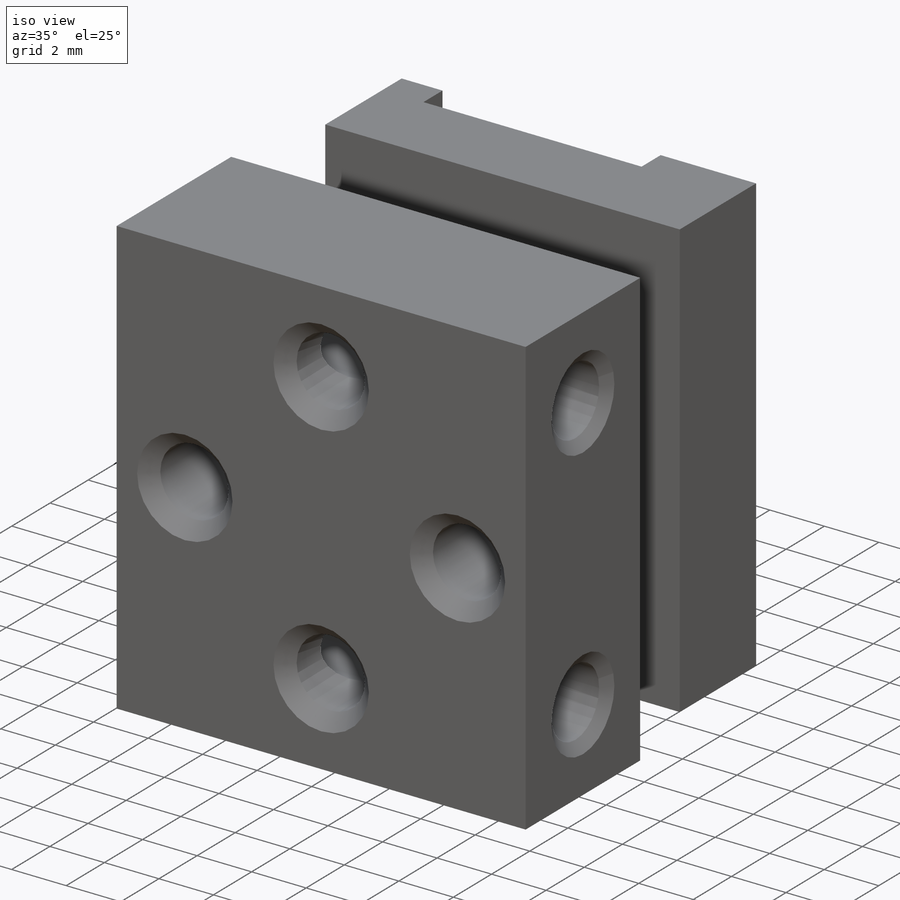
[diagram: iso view]
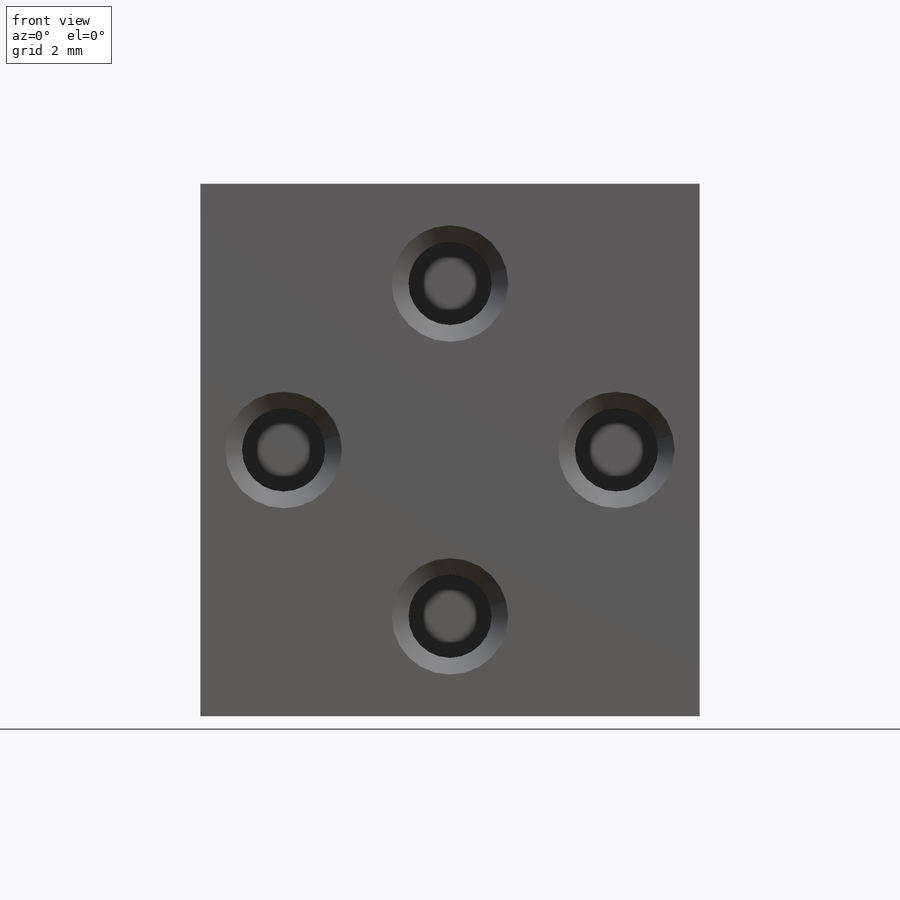
[diagram: front view]
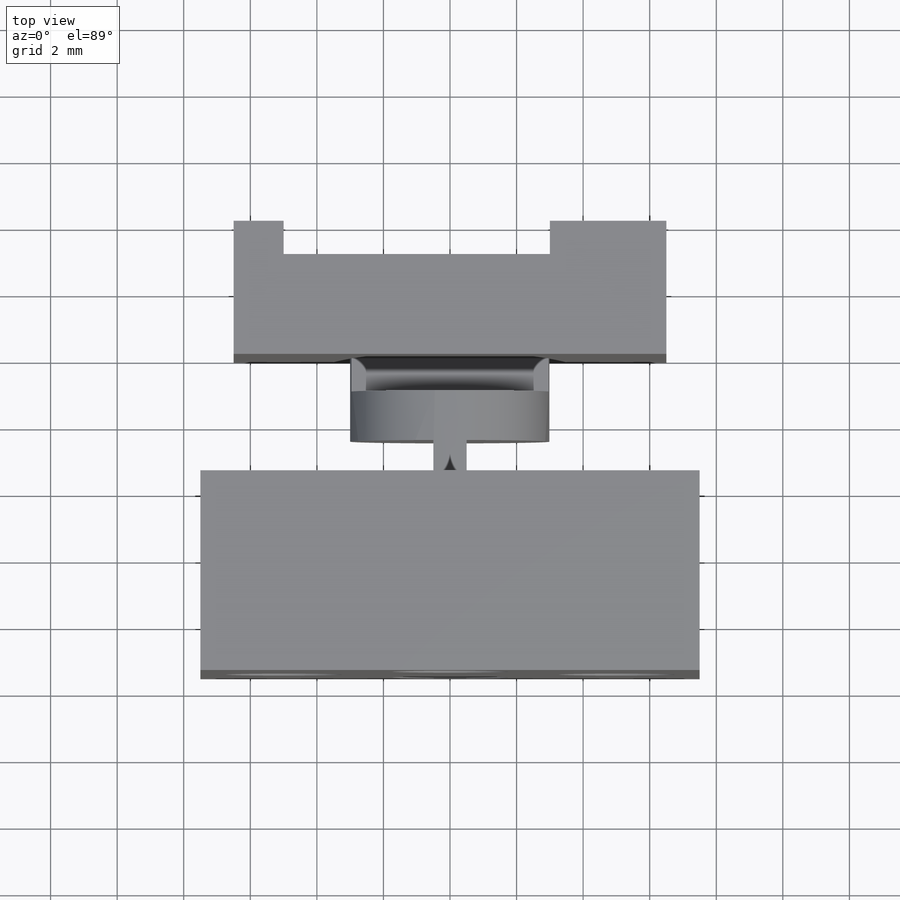
[diagram: top view]
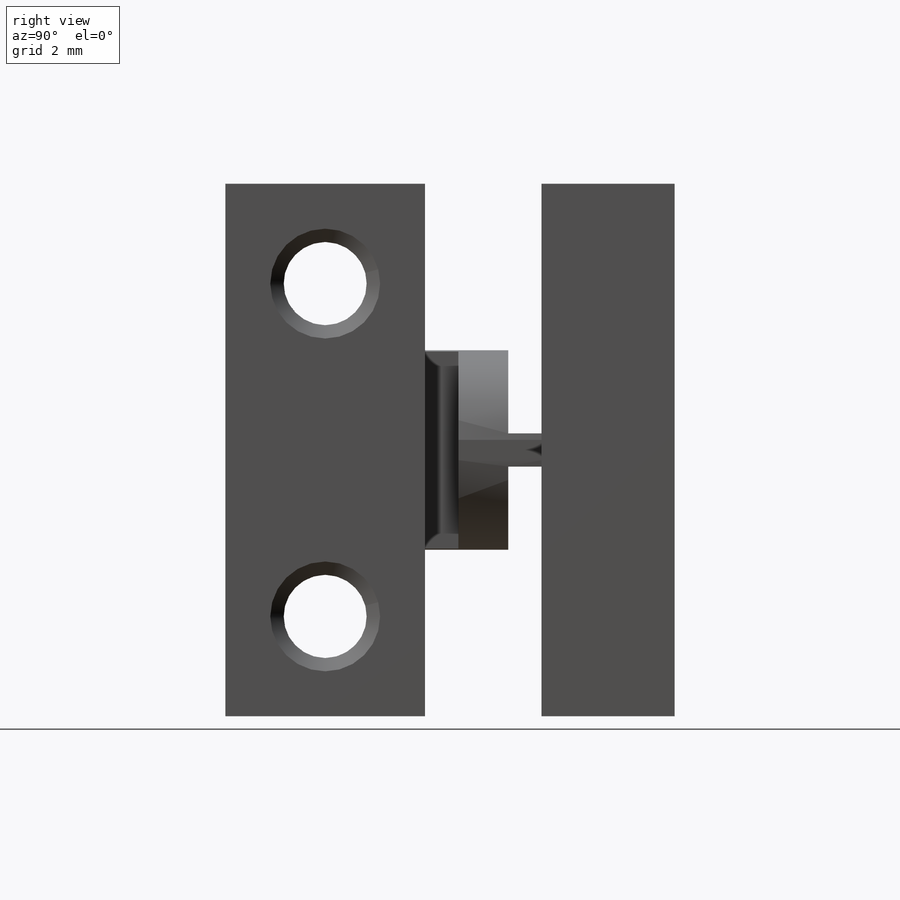
[diagram: right view]
SOLIDWORKS PART (.sldprt)
format: sldprt  version: not decoded by parser v0  size: 424,960 bytes
history: native  units: mm
features: sketch x14, thread x8, cut_extrude x6, plane x3, hole x3, material x1, extrude x1, cut_revolve x1 (+12 scaffold rows collapsed)
feature tree (49):
  scaffold x12  (default folders/planes/origin — collapsed)
  material  "2024-T4"
  plane  "Спереди"
  plane  "Сверху"
  plane  "Справа"
  sketch  "Эскиз1"  dims[D1=15.0mm D2=16.0mm D3=19.0mm D4=5.0mm]
  extrude  "Вытянуть1"  Depth=13.5mm
  sketch  "Эскиз2"  dims[D1=1.0mm D2=1.0mm]
  cut_extrude  "Вырез-Вытянуть2"  Depth=7.5mm
  sketch  "Эскиз4"  dims[D1=3.0mm D2=3.5mm]
  cut_extrude  "Вырез-Вытянуть4"  [1 undecoded]
  sketch  "Эскиз5"  dims[D1=3.0mm]
  cut_extrude  "Вырез-Вытянуть9"  [1 undecoded]
  sketch  "Эскиз6"  dims[c1.D1=2.5mm c1.D2=1.0mm c2.D1=1.0mm]
  cut_extrude  "Вырез-Вытянуть10"  [1 undecoded]
  sketch  "Эскиз7"  dims[D1=1.0mm D2=2.5mm]
  cut_extrude  "Вырез-Вытянуть11"  [1 undecoded]
  sketch  "Эскиз8"  dims[c1.D1=8.0mm c1.D2=1.0mm c1.D3=1.0mm c2.D2=1.5mm]
  cut_extrude  "Вырез-Вытянуть12"  [1 undecoded]
  hole  "Отверстие обработанное метчиком M31"  [1 undecoded]
  sketch  "Трехмерный эскиз1"  dims[D1=2.5mm D2=10.0mm D3=10.0mm D4=3.0mm D5=8.0mm D6=7.5mm]
  sketch  "Эскиз9"  dims[hole-wizard template sketch: 47 standard entries collapsed; hole parameters kept: c15.Глубина проходного сверла=6.0mm c15.Диаметр передней зенковки=3.5mm c15.D4=~3.666174mm c15.Угол передней зенковки=90.0deg c15.Диаметр задней зенковки=3.5mm c15.D6=~9.919017mm c15.Угол задней зенковки=90.0deg]
  thread  "Отверстие резьбы5"  Diameter=3mm  [1 undecoded]
  thread  "Отверстие резьбы6"  Diameter=3mm  [1 undecoded]
  thread  "Отверстие резьбы7"  Diameter=3mm  [1 undecoded]
  thread  "Отверстие резьбы8"  Diameter=3mm  [1 undecoded]
  hole  "Отверстие обработанное метчиком M33"  [1 undecoded]
  sketch  "Трехмерный эскиз2"  dims[D1=3.0mm D2=3.0mm D3=3.0mm]
  sketch  "Эскиз10"  dims[hole-wizard template sketch: 39 standard entries collapsed; hole parameters kept: c13.Диаметр сверла=2.5mm c13.Глубина сверла=7.5mm c13.Диаметр передней зенковки=3.3mm c13.D4=~33.297463mm c13.Угол передней зенковки=110.0deg c14.D5=~14.816244mm c14.Угол заточки сверла=118.0deg]
  thread  "Отверстие резьбы1"  Diameter=5mm  [1 undecoded]
  thread  "Отверстие резьбы2"  Diameter=5mm  [1 undecoded]
  sketch  "Эскиз11"  dims[D1=6.0mm D2=21.0mm D3=21.0mm]
  cut_revolve  "Вырез-Повернуть1"  Angle=360deg
  hole  "Отверстие обработанное метчиком M35"  [1 undecoded]
  sketch  "Эскиз13"
  sketch  "Эскиз12"  dims[hole-wizard template sketch: 39 standard entries collapsed; hole parameters kept: c13.Диаметр сверла=2.5mm c13.Глубина сверла=7.5mm c13.Диаметр передней зенковки=3.3mm c13.D4=~33.297463mm c13.Угол передней зенковки=110.0deg c14.D5=~14.816244mm c14.Угол заточки сверла=118.0deg]
  thread  "Отверстие резьбы3"  Diameter=5mm  [1 undecoded]
  thread  "Отверстие резьбы4"  Diameter=5mm  [1 undecoded]
decode coverage: 24 of 33 modeling features carry decoded parameters
note: ~ marks probable driven/reference dimensions
note: 16 parameter values undecoded
summary: no parameter record found for 8 features
note: suppression state not decoded; provenance and decode notes live in map.json
